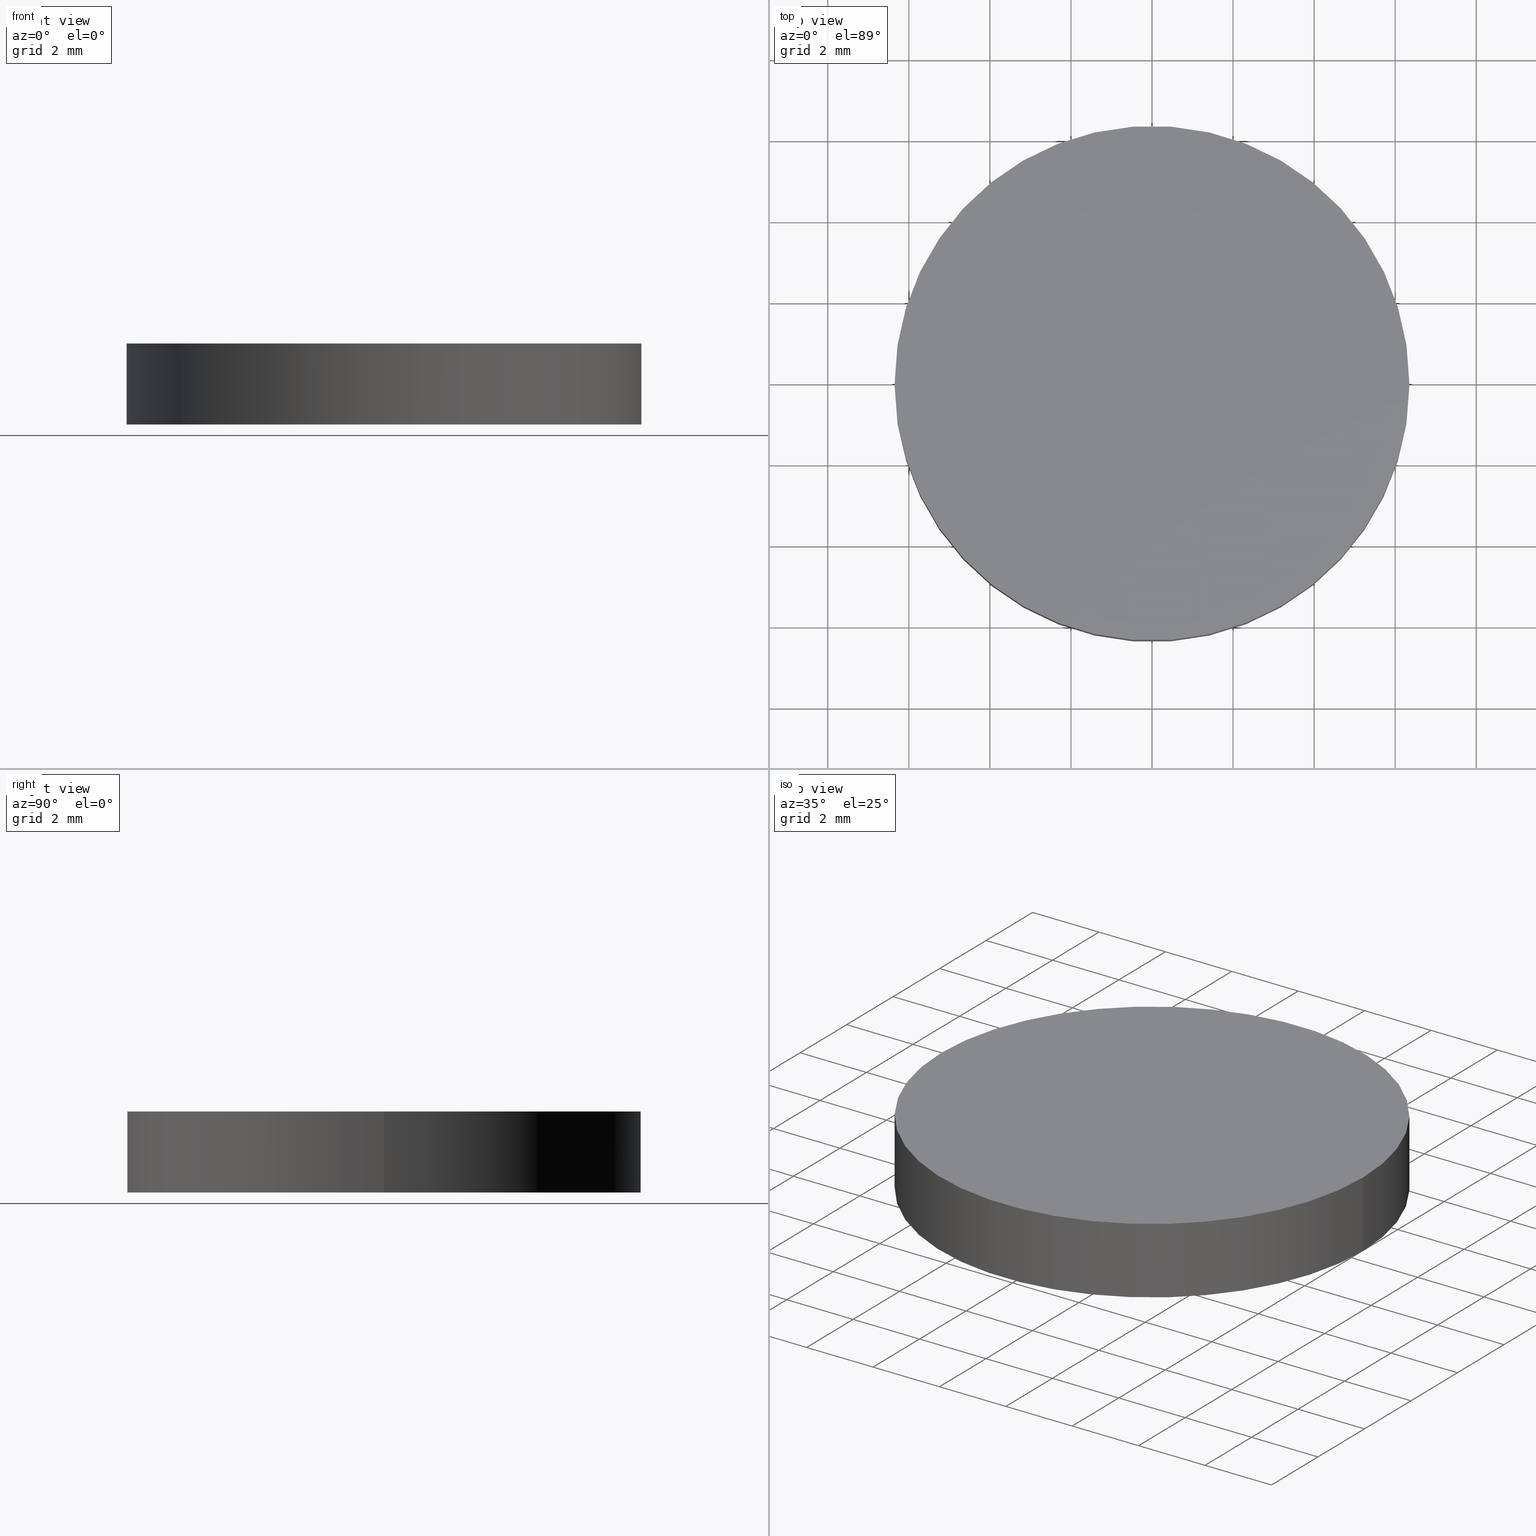
[diagram: canonical four-view strip — front | top / right | iso, engineering-drawing reading convention]
A machine part, canonical four-view strip (front | top / right | iso — engineering-drawing reading convention). The complete STEP part file that produces these views, byte-faithful:
ISO-10303-21;
HEADER;
FILE_DESCRIPTION (( 'STEP AP214' ),
    '1' );
FILE_NAME ('190140.STEP',
    '2019-07-18T02:22:35',
    ( 'user' ),
    ( '΢���й�' ),
    'SwSTEP 2.0',
    'SolidWorks 2016',
    '' );
FILE_SCHEMA (( 'AUTOMOTIVE_DESIGN' ));
ENDSEC;

DATA;
#1 = CARTESIAN_POINT ( 'NONE',  ( 0.0000000000000000000, 0.0000000000000000000, 0.0000000000000000000 ) ) ;
#2 = CARTESIAN_POINT ( 'NONE',  ( 6.349999999999999600, 7.776507174585692200E-016, 0.0000000000000000000 ) ) ;
#3 = VERTEX_POINT ( 'NONE', #93 ) ;
#4 = EDGE_LOOP ( 'NONE', ( #86, #38, #72, #89 ) ) ;
#5 = DIRECTION ( 'NONE',  ( 0.0000000000000000000, 0.0000000000000000000, 1.000000000000000000 ) ) ;
#6 =( NAMED_UNIT ( * ) PLANE_ANGLE_UNIT ( ) SI_UNIT ( $, .RADIAN. ) );
#7 = FILL_AREA_STYLE_COLOUR ( '', #22 ) ;
#8 = CARTESIAN_POINT ( 'NONE',  ( 0.0000000000000000000, 0.0000000000000000000, 0.0000000000000000000 ) ) ;
#9 = MECHANICAL_DESIGN_GEOMETRIC_PRESENTATION_REPRESENTATION (  '', ( #84 ), #45 ) ;
#10 = DIRECTION ( 'NONE',  ( 1.000000000000000000, 0.0000000000000000000, 0.0000000000000000000 ) ) ;
#11 = DIRECTION ( 'NONE',  ( 1.000000000000000000, 0.0000000000000000000, -0.0000000000000000000 ) ) ;
#12 = SURFACE_STYLE_USAGE ( .BOTH. , #47 ) ;
#13 = CIRCLE ( 'NONE', #20, 6.349999999999999600 ) ;
#14 =( NAMED_UNIT ( * ) SI_UNIT ( $, .STERADIAN. ) SOLID_ANGLE_UNIT ( ) );
#15 = MANIFOLD_SOLID_BREP ( '͹̨-����1', #104 ) ;
#16 = PRESENTATION_STYLE_ASSIGNMENT (( #12 ) ) ;
#17 = UNCERTAINTY_MEASURE_WITH_UNIT (LENGTH_MEASURE( 1.000000000000000100E-005 ), #90, 'distance_accuracy_value', 'NONE');
#18 = PRESENTATION_LAYER_ASSIGNMENT (  '', '', ( #50 ) ) ;
#19 = CARTESIAN_POINT ( 'NONE',  ( 0.0000000000000000000, 0.0000000000000000000, 0.0000000000000000000 ) ) ;
#20 = AXIS2_PLACEMENT_3D ( 'NONE', #65, #131, #52 ) ;
#21 = FILL_AREA_STYLE ('',( #110 ) ) ;
#22 = COLOUR_RGB ( '',1.000000000000000000, 1.000000000000000000, 1.000000000000000000 ) ;
#23 =( LENGTH_UNIT ( ) NAMED_UNIT ( * ) SI_UNIT ( .MILLI., .METRE. ) );
#24 = CARTESIAN_POINT ( 'NONE',  ( 0.0000000000000000000, 0.0000000000000000000, 2.000000000000000000 ) ) ;
#25 = VERTEX_POINT ( 'NONE', #48 ) ;
#26 = MECHANICAL_DESIGN_GEOMETRIC_PRESENTATION_REPRESENTATION (  '', ( #50 ), #35 ) ;
#27 = EDGE_LOOP ( 'NONE', ( #49, #127 ) ) ;
#28 = SHAPE_DEFINITION_REPRESENTATION ( #133, #137 ) ;
#29 = VECTOR ( 'NONE', #107, 1000.000000000000000 ) ;
#30 = DIRECTION ( 'NONE',  ( -0.0000000000000000000, -0.0000000000000000000, -1.000000000000000000 ) ) ;
#31 = CARTESIAN_POINT ( 'NONE',  ( 0.0000000000000000000, 0.0000000000000000000, 2.000000000000000000 ) ) ;
#32 = AXIS2_PLACEMENT_3D ( 'NONE', #67, #122, #77 ) ;
#33 = ORIENTED_EDGE ( 'NONE', *, *, #103, .T. ) ;
#34 = APPLICATION_CONTEXT ( 'automotive_design' ) ;
#35 =( GEOMETRIC_REPRESENTATION_CONTEXT ( 3 ) GLOBAL_UNCERTAINTY_ASSIGNED_CONTEXT ( ( #17 ) ) GLOBAL_UNIT_ASSIGNED_CONTEXT ( ( #90, #78, #14 ) ) REPRESENTATION_CONTEXT ( 'NONE', 'WORKASPACE' ) );
#36 = CARTESIAN_POINT ( 'NONE',  ( 0.0000000000000000000, 0.0000000000000000000, 2.000000000000000000 ) ) ;
#37 = AXIS2_PLACEMENT_3D ( 'NONE', #8, #71, #136 ) ;
#38 = ORIENTED_EDGE ( 'NONE', *, *, #138, .T. ) ;
#39 = ADVANCED_FACE ( 'NONE', ( #123 ), #53, .T. ) ;
#40 = PRESENTATION_STYLE_ASSIGNMENT (( #134 ) ) ;
#41 = DIRECTION ( 'NONE',  ( 0.0000000000000000000, 0.0000000000000000000, 1.000000000000000000 ) ) ;
#42 = LINE ( 'NONE', #54, #69 ) ;
#43 = SURFACE_STYLE_FILL_AREA ( #70 ) ;
#44 = APPLICATION_PROTOCOL_DEFINITION ( 'draft international standard', 'automotive_design', 1998, #108 ) ;
#45 =( GEOMETRIC_REPRESENTATION_CONTEXT ( 3 ) GLOBAL_UNCERTAINTY_ASSIGNED_CONTEXT ( ( #96 ) ) GLOBAL_UNIT_ASSIGNED_CONTEXT ( ( #23, #119, #132 ) ) REPRESENTATION_CONTEXT ( 'NONE', 'WORKASPACE' ) );
#46 = APPLICATION_PROTOCOL_DEFINITION ( 'draft international standard', 'automotive_design', 1998, #34 ) ;
#47 = SURFACE_SIDE_STYLE ('',( #43 ) ) ;
#48 = CARTESIAN_POINT ( 'NONE',  ( -6.349999999999999600, 0.0000000000000000000, 0.0000000000000000000 ) ) ;
#49 = ORIENTED_EDGE ( 'NONE', *, *, #83, .T. ) ;
#50 = STYLED_ITEM ( 'NONE', ( #40 ), #137 ) ;
#51 = ORIENTED_EDGE ( 'NONE', *, *, #76, .F. ) ;
#52 = DIRECTION ( 'NONE',  ( 1.000000000000000000, 0.0000000000000000000, 0.0000000000000000000 ) ) ;
#53 = CYLINDRICAL_SURFACE ( 'NONE', #118, 6.349999999999999600 ) ;
#54 = CARTESIAN_POINT ( 'NONE',  ( -6.349999999999999600, 0.0000000000000000000, 2.000000000000000000 ) ) ;
#55 = PRODUCT_CONTEXT ( 'NONE', #34, 'mechanical' ) ;
#56 = ORIENTED_EDGE ( 'NONE', *, *, #99, .T. ) ;
#57 =( NAMED_UNIT ( * ) SI_UNIT ( $, .STERADIAN. ) SOLID_ANGLE_UNIT ( ) );
#58 = AXIS2_PLACEMENT_3D ( 'NONE', #81, #5, #125 ) ;
#59 = ORIENTED_EDGE ( 'NONE', *, *, #83, .F. ) ;
#60 = DIRECTION ( 'NONE',  ( -0.0000000000000000000, -0.0000000000000000000, -1.000000000000000000 ) ) ;
#61 = FACE_OUTER_BOUND ( 'NONE', #27, .T. ) ;
#62 =( GEOMETRIC_REPRESENTATION_CONTEXT ( 3 ) GLOBAL_UNCERTAINTY_ASSIGNED_CONTEXT ( ( #116 ) ) GLOBAL_UNIT_ASSIGNED_CONTEXT ( ( #68, #6, #57 ) ) REPRESENTATION_CONTEXT ( 'NONE', 'WORKASPACE' ) );
#63 = EDGE_LOOP ( 'NONE', ( #114, #51 ) ) ;
#64 = CYLINDRICAL_SURFACE ( 'NONE', #124, 6.349999999999999600 ) ;
#65 = CARTESIAN_POINT ( 'NONE',  ( 0.0000000000000000000, 0.0000000000000000000, 2.000000000000000000 ) ) ;
#66 = PRODUCT_DEFINITION ( 'δ֪', '', #75, #82 ) ;
#67 = CARTESIAN_POINT ( 'NONE',  ( 0.0000000000000000000, 0.0000000000000000000, 2.000000000000000000 ) ) ;
#68 =( LENGTH_UNIT ( ) NAMED_UNIT ( * ) SI_UNIT ( .MILLI., .METRE. ) );
#69 = VECTOR ( 'NONE', #88, 1000.000000000000000 ) ;
#70 = FILL_AREA_STYLE ('',( #7 ) ) ;
#71 = DIRECTION ( 'NONE',  ( 0.0000000000000000000, 0.0000000000000000000, 1.000000000000000000 ) ) ;
#72 = ORIENTED_EDGE ( 'NONE', *, *, #76, .T. ) ;
#73 = PRESENTATION_LAYER_ASSIGNMENT (  '', '', ( #84 ) ) ;
#74 = CIRCLE ( 'NONE', #129, 6.349999999999999600 ) ;
#75 = PRODUCT_DEFINITION_FORMATION_WITH_SPECIFIED_SOURCE ( '�κ�', '', #112, .NOT_KNOWN. ) ;
#76 = EDGE_CURVE ( 'NONE', #97, #25, #74, .T. ) ;
#77 = DIRECTION ( 'NONE',  ( 1.000000000000000000, 0.0000000000000000000, -0.0000000000000000000 ) ) ;
#78 =( NAMED_UNIT ( * ) PLANE_ANGLE_UNIT ( ) SI_UNIT ( $, .RADIAN. ) );
#79 = FACE_OUTER_BOUND ( 'NONE', #63, .T. ) ;
#80 = PRODUCT_RELATED_PRODUCT_CATEGORY ( 'part', '', ( #112 ) ) ;
#81 = CARTESIAN_POINT ( 'NONE',  ( 0.0000000000000000000, 0.0000000000000000000, 0.0000000000000000000 ) ) ;
#82 = PRODUCT_DEFINITION_CONTEXT ( 'detailed design', #108, 'design' ) ;
#83 = EDGE_CURVE ( 'NONE', #117, #3, #13, .T. ) ;
#84 = STYLED_ITEM ( 'NONE', ( #16 ), #15 ) ;
#85 = ADVANCED_FACE ( 'NONE', ( #79 ), #120, .F. ) ;
#86 = ORIENTED_EDGE ( 'NONE', *, *, #111, .F. ) ;
#87 = DIRECTION ( 'NONE',  ( 0.0000000000000000000, 0.0000000000000000000, 1.000000000000000000 ) ) ;
#88 = DIRECTION ( 'NONE',  ( -0.0000000000000000000, -0.0000000000000000000, -1.000000000000000000 ) ) ;
#89 = ORIENTED_EDGE ( 'NONE', *, *, #103, .F. ) ;
#90 =( LENGTH_UNIT ( ) NAMED_UNIT ( * ) SI_UNIT ( .MILLI., .METRE. ) );
#91 = CIRCLE ( 'NONE', #37, 6.349999999999999600 ) ;
#92 = DIRECTION ( 'NONE',  ( 1.000000000000000000, 0.0000000000000000000, 0.0000000000000000000 ) ) ;
#93 = CARTESIAN_POINT ( 'NONE',  ( 6.349999999999999600, 7.776507174585692200E-016, 2.000000000000000000 ) ) ;
#94 = AXIS2_PLACEMENT_3D ( 'NONE', #1, #41, #11 ) ;
#95 = SURFACE_STYLE_FILL_AREA ( #21 ) ;
#96 = UNCERTAINTY_MEASURE_WITH_UNIT (LENGTH_MEASURE( 1.000000000000000100E-005 ), #23, 'distance_accuracy_value', 'NONE');
#97 = VERTEX_POINT ( 'NONE', #2 ) ;
#98 = ADVANCED_FACE ( 'NONE', ( #61 ), #105, .T. ) ;
#99 = EDGE_CURVE ( 'NONE', #25, #97, #91, .T. ) ;
#100 = CIRCLE ( 'NONE', #135, 6.349999999999999600 ) ;
#101 = SURFACE_SIDE_STYLE ('',( #95 ) ) ;
#102 = DIRECTION ( 'NONE',  ( 0.0000000000000000000, 0.0000000000000000000, 1.000000000000000000 ) ) ;
#103 = EDGE_CURVE ( 'NONE', #117, #25, #42, .T. ) ;
#104 = CLOSED_SHELL ( 'NONE', ( #139, #39, #98, #85 ) ) ;
#105 = PLANE ( 'NONE',  #32 ) ;
#106 = DIRECTION ( 'NONE',  ( -1.000000000000000000, 0.0000000000000000000, 0.0000000000000000000 ) ) ;
#107 = DIRECTION ( 'NONE',  ( -0.0000000000000000000, -0.0000000000000000000, -1.000000000000000000 ) ) ;
#108 = APPLICATION_CONTEXT ( 'automotive_design' ) ;
#109 = ORIENTED_EDGE ( 'NONE', *, *, #138, .F. ) ;
#110 = FILL_AREA_STYLE_COLOUR ( '', #128 ) ;
#111 = EDGE_CURVE ( 'NONE', #3, #117, #100, .T. ) ;
#112 = PRODUCT ( '190140', '190140', '', ( #55 ) ) ;
#113 = CARTESIAN_POINT ( 'NONE',  ( 6.349999999999999600, 7.776507174585692200E-016, 2.000000000000000000 ) ) ;
#114 = ORIENTED_EDGE ( 'NONE', *, *, #99, .F. ) ;
#115 = LINE ( 'NONE', #113, #29 ) ;
#116 = UNCERTAINTY_MEASURE_WITH_UNIT (LENGTH_MEASURE( 1.000000000000000100E-005 ), #68, 'distance_accuracy_value', 'NONE');
#117 = VERTEX_POINT ( 'NONE', #126 ) ;
#118 = AXIS2_PLACEMENT_3D ( 'NONE', #36, #30, #106 ) ;
#119 =( NAMED_UNIT ( * ) PLANE_ANGLE_UNIT ( ) SI_UNIT ( $, .RADIAN. ) );
#120 = PLANE ( 'NONE',  #94 ) ;
#121 = DIRECTION ( 'NONE',  ( -1.000000000000000000, 0.0000000000000000000, 0.0000000000000000000 ) ) ;
#122 = DIRECTION ( 'NONE',  ( 0.0000000000000000000, 0.0000000000000000000, 1.000000000000000000 ) ) ;
#123 = FACE_OUTER_BOUND ( 'NONE', #140, .T. ) ;
#124 = AXIS2_PLACEMENT_3D ( 'NONE', #31, #60, #121 ) ;
#125 = DIRECTION ( 'NONE',  ( 1.000000000000000000, 0.0000000000000000000, 0.0000000000000000000 ) ) ;
#126 = CARTESIAN_POINT ( 'NONE',  ( -6.349999999999999600, 0.0000000000000000000, 2.000000000000000000 ) ) ;
#127 = ORIENTED_EDGE ( 'NONE', *, *, #111, .T. ) ;
#128 = COLOUR_RGB ( '',1.000000000000000000, 1.000000000000000000, 1.000000000000000000 ) ;
#129 = AXIS2_PLACEMENT_3D ( 'NONE', #19, #87, #10 ) ;
#130 = FACE_OUTER_BOUND ( 'NONE', #4, .T. ) ;
#131 = DIRECTION ( 'NONE',  ( 0.0000000000000000000, 0.0000000000000000000, 1.000000000000000000 ) ) ;
#132 =( NAMED_UNIT ( * ) SI_UNIT ( $, .STERADIAN. ) SOLID_ANGLE_UNIT ( ) );
#133 = PRODUCT_DEFINITION_SHAPE ( 'NONE', 'NONE',  #66 ) ;
#134 = SURFACE_STYLE_USAGE ( .BOTH. , #101 ) ;
#135 = AXIS2_PLACEMENT_3D ( 'NONE', #24, #102, #92 ) ;
#136 = DIRECTION ( 'NONE',  ( 1.000000000000000000, 0.0000000000000000000, 0.0000000000000000000 ) ) ;
#137 = ADVANCED_BREP_SHAPE_REPRESENTATION ( '190140', ( #15, #58 ), #62 ) ;
#138 = EDGE_CURVE ( 'NONE', #3, #97, #115, .T. ) ;
#139 = ADVANCED_FACE ( 'NONE', ( #130 ), #64, .T. ) ;
#140 = EDGE_LOOP ( 'NONE', ( #109, #59, #33, #56 ) ) ;
ENDSEC;
END-ISO-10303-21;
